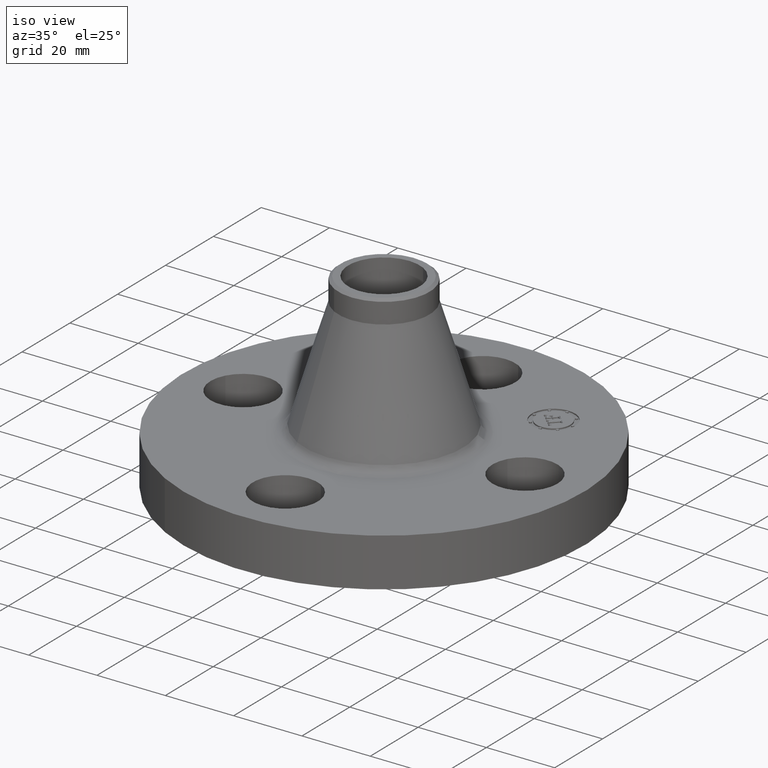
[diagram: clean part render]
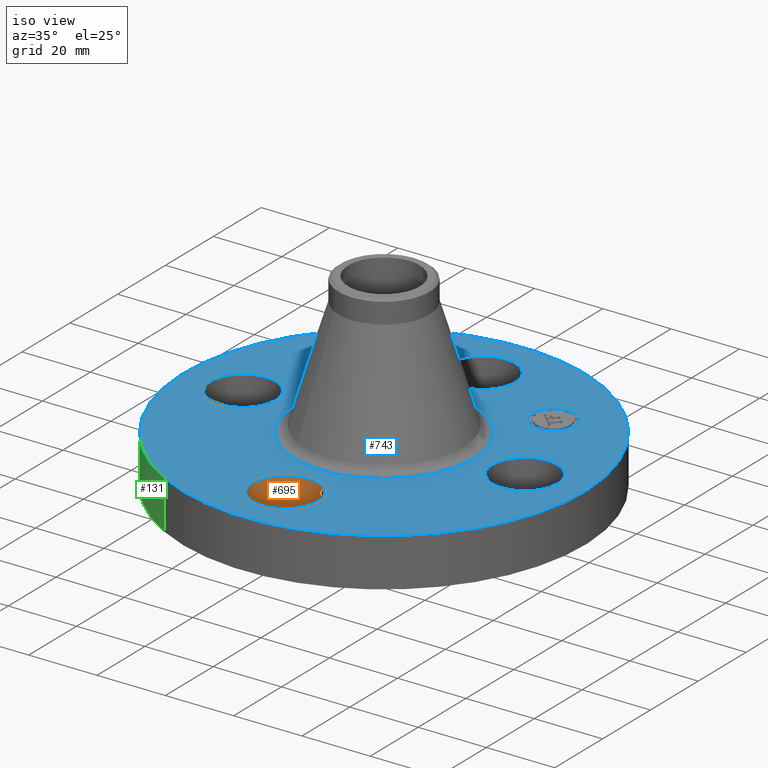
[diagram: same view with three faces highlighted in distinct colors, each labeled with its STEP entity id]
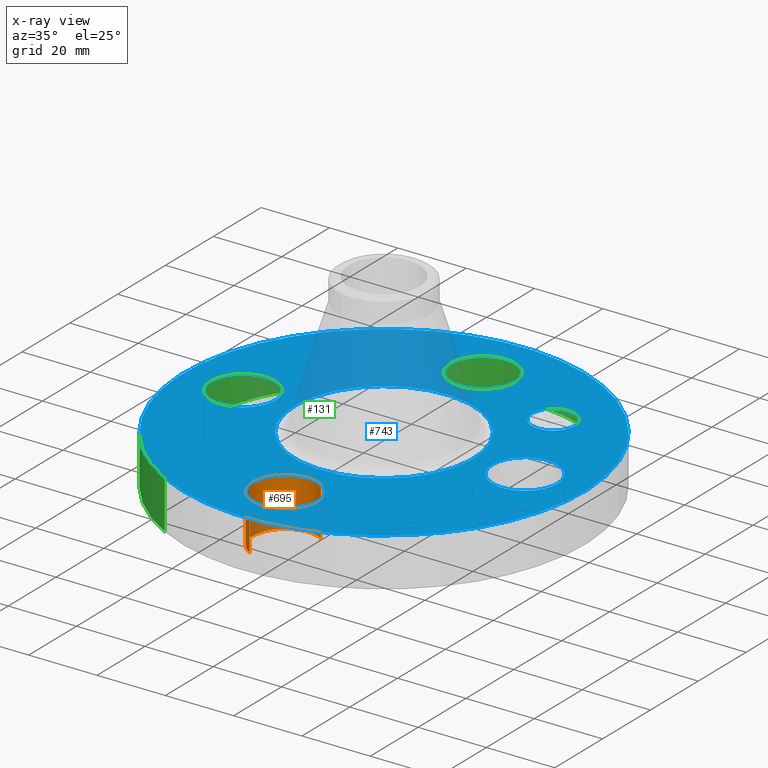
[diagram: x-ray of the same camera — body ghosted, the three highlighted faces saturated]
A machine part, iso view with three faces highlighted in distinct colors.
The next image is the same camera in x-ray (body ghosted, the three faces saturated) — at least one of them is partly hidden behind the body in this view.
Their STEP definitions:

[orange] entity #695 — the highlighted cylindrical surface (partial cylindrical patch) has radius 9.525 mm, axis along (0, -0, -1).
#523=AXIS2_PLACEMENT_3D('Circle Axis2P3D',#521,#522,$) ;
#656=AXIS2_PLACEMENT_3D('Cylinder Axis2P3D',#653,#654,#655) ;
#686=AXIS2_PLACEMENT_3D('Circle Axis2P3D',#684,#685,$) ;
#516=CARTESIAN_POINT('Vertex',(0.179784576977,-1.2959065393,0.)) ;
#518=CARTESIAN_POINT('Vertex',(-0.179784576977,-1.95409346072,6.99353086378E-017)) ;
#521=CARTESIAN_POINT('Axis2P3D Location',(-2.79741234551E-016,-1.62500000001,0.)) ;
#653=CARTESIAN_POINT('Axis2P3D Location',(-1.8023868212E-016,-1.62500000001,0.556062992128)) ;
#658=CARTESIAN_POINT('Line Origine',(0.179784576977,-1.2959065393,0.280000000001)) ;
#662=CARTESIAN_POINT('Vertex',(0.179784576977,-1.2959065393,0.560000000002)) ;
#665=CARTESIAN_POINT('Line Origine',(-0.179784576977,-1.95409346072,0.280000000001)) ;
#669=CARTESIAN_POINT('Vertex',(-0.179784576977,-1.95409346072,0.560000000002)) ;
#684=CARTESIAN_POINT('Axis2P3D Location',(-1.8023868212E-016,-1.62500000001,0.560000000002)) ;
#522=DIRECTION('Axis2P3D Direction',(0.,0.,-0.0393700787402)) ;
#654=DIRECTION('Axis2P3D Direction',(0.,-0.,-0.0393700787402)) ;
#655=DIRECTION('Axis2P3D XDirection',(-0.0188750212049,-0.0345504945626,0.)) ;
#659=DIRECTION('Vector Direction',(0.,0.,-0.0393700787402)) ;
#666=DIRECTION('Vector Direction',(0.,0.,-0.0393700787402)) ;
#685=DIRECTION('Axis2P3D Direction',(0.,-0.,-0.0393700787402)) ;
#660=VECTOR('Line Direction',#659,0.0393700787402) ;
#667=VECTOR('Line Direction',#666,0.0393700787402) ;
#690=ORIENTED_EDGE('',*,*,#671,.F.) ;
#691=ORIENTED_EDGE('',*,*,#525,.T.) ;
#692=ORIENTED_EDGE('',*,*,#664,.T.) ;
#693=ORIENTED_EDGE('',*,*,#688,.F.) ;
#695=ADVANCED_FACE('PartBody',(#694),#657,.F.) ;
#524=CIRCLE('generated circle',#523,0.375000000001) ;
#687=CIRCLE('generated circle',#686,0.375000000001) ;
#657=CYLINDRICAL_SURFACE('generated cylinder',#656,0.375000000001) ;
#525=EDGE_CURVE('',#519,#517,#524,.T.) ;
#664=EDGE_CURVE('',#517,#663,#661,.F.) ;
#671=EDGE_CURVE('',#519,#670,#668,.F.) ;
#688=EDGE_CURVE('',#670,#663,#687,.T.) ;
#689=EDGE_LOOP('',(#690,#691,#692,#693)) ;
#694=FACE_OUTER_BOUND('',#689,.T.) ;
#661=LINE('Line',#658,#660) ;
#668=LINE('Line',#665,#667) ;
#517=VERTEX_POINT('',#516) ;
#519=VERTEX_POINT('',#518) ;
#663=VERTEX_POINT('',#662) ;
#670=VERTEX_POINT('',#669) ;

[blue] entity #743 — the highlighted planar face has unit normal (0, 0, -1).
#65=AXIS2_PLACEMENT_3D('Circle Axis2P3D',#63,#64,$) ;
#82=AXIS2_PLACEMENT_3D('Circle Axis2P3D',#80,#81,$) ;
#115=AXIS2_PLACEMENT_3D('Circle Axis2P3D',#113,#114,$) ;
#139=AXIS2_PLACEMENT_3D('Circle Axis2P3D',#137,#138,$) ;
#156=AXIS2_PLACEMENT_3D('Circle Axis2P3D',#154,#155,$) ;
#191=AXIS2_PLACEMENT_3D('Circle Axis2P3D',#189,#190,$) ;
#588=AXIS2_PLACEMENT_3D('Circle Axis2P3D',#586,#587,$) ;
#600=AXIS2_PLACEMENT_3D('Circle Axis2P3D',#598,#599,$) ;
#631=AXIS2_PLACEMENT_3D('Circle Axis2P3D',#629,#630,$) ;
#643=AXIS2_PLACEMENT_3D('Circle Axis2P3D',#641,#642,$) ;
#674=AXIS2_PLACEMENT_3D('Circle Axis2P3D',#672,#673,$) ;
#686=AXIS2_PLACEMENT_3D('Circle Axis2P3D',#684,#685,$) ;
#699=AXIS2_PLACEMENT_3D('Plane Axis2P3D',#696,#697,#698) ;
#727=AXIS2_PLACEMENT_3D('Circle Axis2P3D',#725,#726,$) ;
#736=AXIS2_PLACEMENT_3D('Circle Axis2P3D',#734,#735,$) ;
#46=CARTESIAN_POINT('Vertex',(1.2959065393,0.179784576977,0.560000000002)) ;
#60=CARTESIAN_POINT('Vertex',(1.95409346072,-0.179784576977,0.560000000002)) ;
#63=CARTESIAN_POINT('Axis2P3D Location',(1.62500000001,0.,0.560000000002)) ;
#80=CARTESIAN_POINT('Axis2P3D Location',(1.62500000001,0.,0.560000000002)) ;
#110=CARTESIAN_POINT('Vertex',(-1.10747299418,-2.02721571797,0.560000000002)) ;
#113=CARTESIAN_POINT('Axis2P3D Location',(0.,0.,0.560000000002)) ;
#117=CARTESIAN_POINT('Vertex',(1.10747299418,2.02721571797,0.560000000002)) ;
#137=CARTESIAN_POINT('Axis2P3D Location',(0.,0.,0.560000000002)) ;
#154=CARTESIAN_POINT('Axis2P3D Location',(0.,0.,0.560000000002)) ;
#158=CARTESIAN_POINT('Vertex',(0.49332269324,0.903021132819,0.560000000002)) ;
#160=CARTESIAN_POINT('Vertex',(-0.49332269324,-0.903021132819,0.560000000002)) ;
#189=CARTESIAN_POINT('Axis2P3D Location',(0.,0.,0.560000000002)) ;
#576=CARTESIAN_POINT('Vertex',(-0.179784576977,1.2959065393,0.560000000002)) ;
#583=CARTESIAN_POINT('Vertex',(0.179784576977,1.95409346072,0.560000000002)) ;
#586=CARTESIAN_POINT('Axis2P3D Location',(-2.98507657293E-016,1.62500000001,0.560000000002)) ;
#598=CARTESIAN_POINT('Axis2P3D Location',(-2.98507657293E-016,1.62500000001,0.560000000002)) ;
#619=CARTESIAN_POINT('Vertex',(-1.2959065393,-0.179784576977,0.560000000002)) ;
#626=CARTESIAN_POINT('Vertex',(-1.95409346072,0.179784576977,0.560000000002)) ;
#629=CARTESIAN_POINT('Axis2P3D Location',(-1.62500000001,-1.99005104862E-016,0.560000000002)) ;
#641=CARTESIAN_POINT('Axis2P3D Location',(-1.62500000001,-1.99005104862E-016,0.560000000002)) ;
#662=CARTESIAN_POINT('Vertex',(0.179784576977,-1.2959065393,0.560000000002)) ;
#669=CARTESIAN_POINT('Vertex',(-0.179784576977,-1.95409346072,0.560000000002)) ;
#672=CARTESIAN_POINT('Axis2P3D Location',(-1.8023868212E-016,-1.62500000001,0.560000000002)) ;
#684=CARTESIAN_POINT('Axis2P3D Location',(-1.8023868212E-016,-1.62500000001,0.560000000002)) ;
#696=CARTESIAN_POINT('Axis2P3D Location',(0.,2.31000000001,0.560000000002)) ;
#725=CARTESIAN_POINT('Axis2P3D Location',(1.14904851943,1.14904851943,0.560000000002)) ;
#729=CARTESIAN_POINT('Vertex',(0.974039591088,1.32405744778,0.560000000002)) ;
#731=CARTESIAN_POINT('Vertex',(1.32405744778,0.974039591088,0.560000000002)) ;
#734=CARTESIAN_POINT('Axis2P3D Location',(1.14904851943,1.14904851943,0.560000000002)) ;
#64=DIRECTION('Axis2P3D Direction',(0.,-0.,-0.0393700787402)) ;
#81=DIRECTION('Axis2P3D Direction',(0.,-0.,-0.0393700787402)) ;
#114=DIRECTION('Axis2P3D Direction',(0.,0.,-0.0393700787402)) ;
#138=DIRECTION('Axis2P3D Direction',(0.,0.,-0.0393700787402)) ;
#155=DIRECTION('Axis2P3D Direction',(0.,0.,-0.0393700787402)) ;
#190=DIRECTION('Axis2P3D Direction',(0.,0.,-0.0393700787402)) ;
#587=DIRECTION('Axis2P3D Direction',(0.,0.,-0.0393700787402)) ;
#599=DIRECTION('Axis2P3D Direction',(0.,0.,-0.0393700787402)) ;
#630=DIRECTION('Axis2P3D Direction',(-0.,0.,-0.0393700787402)) ;
#642=DIRECTION('Axis2P3D Direction',(-0.,0.,-0.0393700787402)) ;
#673=DIRECTION('Axis2P3D Direction',(0.,-0.,-0.0393700787402)) ;
#685=DIRECTION('Axis2P3D Direction',(0.,-0.,-0.0393700787402)) ;
#697=DIRECTION('Axis2P3D Direction',(0.,0.,-0.0393700787402)) ;
#698=DIRECTION('Axis2P3D XDirection',(0.0393700787402,0.,0.)) ;
#726=DIRECTION('Axis2P3D Direction',(0.,0.,-0.0393700787402)) ;
#735=DIRECTION('Axis2P3D Direction',(0.,0.,-0.0393700787402)) ;
#702=ORIENTED_EDGE('',*,*,#141,.F.) ;
#703=ORIENTED_EDGE('',*,*,#119,.F.) ;
#706=ORIENTED_EDGE('',*,*,#67,.T.) ;
#707=ORIENTED_EDGE('',*,*,#84,.T.) ;
#710=ORIENTED_EDGE('',*,*,#193,.T.) ;
#711=ORIENTED_EDGE('',*,*,#162,.T.) ;
#714=ORIENTED_EDGE('',*,*,#688,.T.) ;
#715=ORIENTED_EDGE('',*,*,#676,.T.) ;
#718=ORIENTED_EDGE('',*,*,#645,.T.) ;
#719=ORIENTED_EDGE('',*,*,#633,.T.) ;
#722=ORIENTED_EDGE('',*,*,#602,.T.) ;
#723=ORIENTED_EDGE('',*,*,#590,.T.) ;
#740=ORIENTED_EDGE('',*,*,#733,.T.) ;
#741=ORIENTED_EDGE('',*,*,#738,.T.) ;
#708=FACE_BOUND('',#705,.T.) ;
#712=FACE_BOUND('',#709,.T.) ;
#716=FACE_BOUND('',#713,.T.) ;
#720=FACE_BOUND('',#717,.T.) ;
#724=FACE_BOUND('',#721,.T.) ;
#742=FACE_BOUND('',#739,.T.) ;
#743=ADVANCED_FACE('PartBody',(#704,#708,#712,#716,#720,#724,#742),#700,.F.) ;
#66=CIRCLE('generated circle',#65,0.375000000001) ;
#83=CIRCLE('generated circle',#82,0.375000000001) ;
#116=CIRCLE('generated circle',#115,2.31000000001) ;
#140=CIRCLE('generated circle',#139,2.31000000001) ;
#157=CIRCLE('generated circle',#156,1.02898709709) ;
#192=CIRCLE('generated circle',#191,1.02898709709) ;
#589=CIRCLE('generated circle',#588,0.375000000001) ;
#601=CIRCLE('generated circle',#600,0.375000000001) ;
#632=CIRCLE('generated circle',#631,0.375000000002) ;
#644=CIRCLE('generated circle',#643,0.375000000002) ;
#675=CIRCLE('generated circle',#674,0.375000000001) ;
#687=CIRCLE('generated circle',#686,0.375000000001) ;
#728=CIRCLE('generated circle',#727,0.247500000001) ;
#737=CIRCLE('generated circle',#736,0.247500000001) ;
#67=EDGE_CURVE('',#47,#61,#66,.T.) ;
#84=EDGE_CURVE('',#61,#47,#83,.T.) ;
#119=EDGE_CURVE('',#111,#118,#116,.T.) ;
#141=EDGE_CURVE('',#118,#111,#140,.T.) ;
#162=EDGE_CURVE('',#159,#161,#157,.T.) ;
#193=EDGE_CURVE('',#161,#159,#192,.T.) ;
#590=EDGE_CURVE('',#577,#584,#589,.T.) ;
#602=EDGE_CURVE('',#584,#577,#601,.T.) ;
#633=EDGE_CURVE('',#620,#627,#632,.T.) ;
#645=EDGE_CURVE('',#627,#620,#644,.T.) ;
#676=EDGE_CURVE('',#663,#670,#675,.T.) ;
#688=EDGE_CURVE('',#670,#663,#687,.T.) ;
#733=EDGE_CURVE('',#730,#732,#728,.T.) ;
#738=EDGE_CURVE('',#732,#730,#737,.T.) ;
#701=EDGE_LOOP('',(#702,#703)) ;
#705=EDGE_LOOP('',(#706,#707)) ;
#709=EDGE_LOOP('',(#710,#711)) ;
#713=EDGE_LOOP('',(#714,#715)) ;
#717=EDGE_LOOP('',(#718,#719)) ;
#721=EDGE_LOOP('',(#722,#723)) ;
#739=EDGE_LOOP('',(#740,#741)) ;
#704=FACE_OUTER_BOUND('',#701,.T.) ;
#700=PLANE('',#699) ;
#47=VERTEX_POINT('',#46) ;
#61=VERTEX_POINT('',#60) ;
#111=VERTEX_POINT('',#110) ;
#118=VERTEX_POINT('',#117) ;
#159=VERTEX_POINT('',#158) ;
#161=VERTEX_POINT('',#160) ;
#577=VERTEX_POINT('',#576) ;
#584=VERTEX_POINT('',#583) ;
#620=VERTEX_POINT('',#619) ;
#627=VERTEX_POINT('',#626) ;
#663=VERTEX_POINT('',#662) ;
#670=VERTEX_POINT('',#669) ;
#730=VERTEX_POINT('',#729) ;
#732=VERTEX_POINT('',#731) ;

[green] entity #131 — the highlighted cylindrical surface (partial cylindrical patch) has radius 58.674 mm, axis along (0, 0, -1).
#95=AXIS2_PLACEMENT_3D('Cylinder Axis2P3D',#92,#93,#94) ;
#99=AXIS2_PLACEMENT_3D('Circle Axis2P3D',#97,#98,$) ;
#115=AXIS2_PLACEMENT_3D('Circle Axis2P3D',#113,#114,$) ;
#92=CARTESIAN_POINT('Axis2P3D Location',(0.,0.,1.06375)) ;
#97=CARTESIAN_POINT('Axis2P3D Location',(0.,0.,1.39870617276E-016)) ;
#101=CARTESIAN_POINT('Vertex',(-1.10747299418,-2.02721571797,1.39870617276E-016)) ;
#103=CARTESIAN_POINT('Vertex',(1.10747299418,2.02721571797,1.39870617276E-016)) ;
#106=CARTESIAN_POINT('Line Origine',(-1.10747299418,-2.02721571797,0.280000000001)) ;
#110=CARTESIAN_POINT('Vertex',(-1.10747299418,-2.02721571797,0.560000000002)) ;
#113=CARTESIAN_POINT('Axis2P3D Location',(0.,0.,0.560000000002)) ;
#117=CARTESIAN_POINT('Vertex',(1.10747299418,2.02721571797,0.560000000002)) ;
#120=CARTESIAN_POINT('Line Origine',(1.10747299418,2.02721571797,0.280000000001)) ;
#93=DIRECTION('Axis2P3D Direction',(0.,0.,-0.0393700787402)) ;
#94=DIRECTION('Axis2P3D XDirection',(0.0188750212049,0.0345504945626,0.)) ;
#98=DIRECTION('Axis2P3D Direction',(0.,0.,-0.0393700787402)) ;
#107=DIRECTION('Vector Direction',(0.,0.,-0.0393700787402)) ;
#114=DIRECTION('Axis2P3D Direction',(0.,0.,-0.0393700787402)) ;
#121=DIRECTION('Vector Direction',(0.,0.,-0.0393700787402)) ;
#108=VECTOR('Line Direction',#107,0.0393700787402) ;
#122=VECTOR('Line Direction',#121,0.0393700787402) ;
#126=ORIENTED_EDGE('',*,*,#105,.F.) ;
#127=ORIENTED_EDGE('',*,*,#112,.T.) ;
#128=ORIENTED_EDGE('',*,*,#119,.T.) ;
#129=ORIENTED_EDGE('',*,*,#124,.F.) ;
#131=ADVANCED_FACE('PartBody',(#130),#96,.T.) ;
#100=CIRCLE('generated circle',#99,2.31000000001) ;
#116=CIRCLE('generated circle',#115,2.31000000001) ;
#96=CYLINDRICAL_SURFACE('generated cylinder',#95,2.31000000001) ;
#105=EDGE_CURVE('',#102,#104,#100,.T.) ;
#112=EDGE_CURVE('',#102,#111,#109,.F.) ;
#119=EDGE_CURVE('',#111,#118,#116,.T.) ;
#124=EDGE_CURVE('',#104,#118,#123,.F.) ;
#125=EDGE_LOOP('',(#126,#127,#128,#129)) ;
#130=FACE_OUTER_BOUND('',#125,.T.) ;
#109=LINE('Line',#106,#108) ;
#123=LINE('Line',#120,#122) ;
#102=VERTEX_POINT('',#101) ;
#104=VERTEX_POINT('',#103) ;
#111=VERTEX_POINT('',#110) ;
#118=VERTEX_POINT('',#117) ;